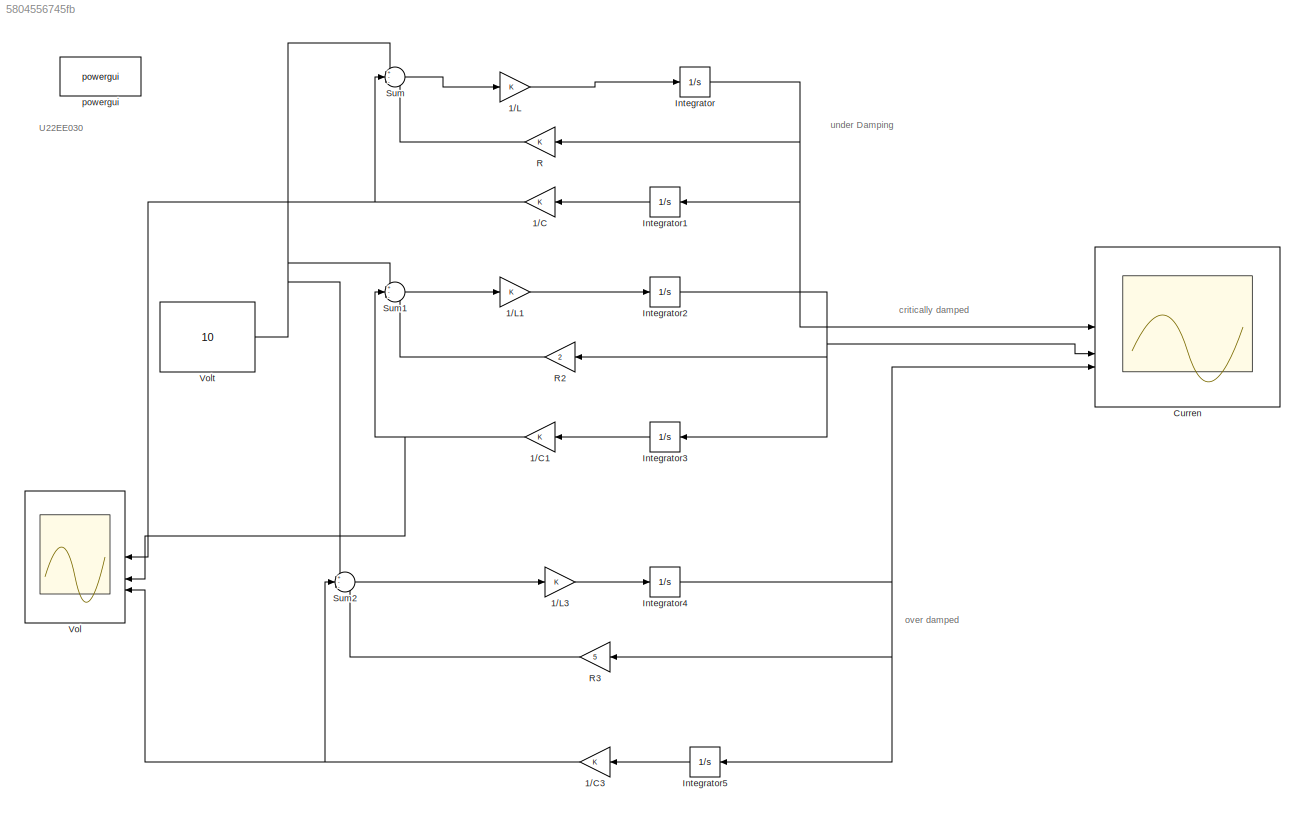
MODEL slx_5804556745fb
KIND model
CONFIG AbsTol = auto
CONFIG EnableMultiTasking = off
CONFIG FixedStep = auto
CONFIG MaxStep = auto
CONFIG MinStep = auto
CONFIG RelTol = 1e-3
CONFIG SampleTimeConstraint = Unconstrained
CONFIG SolverName = VariableStepAuto
CONFIG StartTime = 0.0
CONFIG StopTime = 10.0
BLOCK [Gain] 1//C
  NameLocation = top
BLOCK [Gain] 1//C1
  NameLocation = top
BLOCK [Gain] 1//C3
  NameLocation = top
BLOCK [Gain] 1//L
BLOCK [Gain] 1//L1
BLOCK [Gain] 1//L3
BLOCK [Scope] Curren
  Floating = off
  NumInputPorts = 3
  ScopeSpecificationString = Simulink.scopes.TimeScopeBlockCfg('CurrentConfiguration', extmgr.ConfigurationSet(extmgr.Configuration('Core','General UI',true,'FigureColor',[0.831372549019608 0.815686274509804 0.784313725490196]),extmgr.Configuration('Core','Source UI',true),extmgr.Configuration('Sources','WiredSimulink',true),extmgr.Configuration('Visuals','Time Domain',true,'SerializedDisplays',{struct('MinYLimReal','-1.68292...<+1600ch>
BLOCK [Integrator] Integrator
BLOCK [Integrator] Integrator1
  NameLocation = top
BLOCK [Integrator] Integrator2
BLOCK [Integrator] Integrator3
  NameLocation = top
BLOCK [Integrator] Integrator4
BLOCK [Integrator] Integrator5
  NameLocation = top
BLOCK [Gain] R
  NameLocation = top
BLOCK [Gain] R2
  Gain = 2
  NameLocation = top
BLOCK [Gain] R3
  Gain = 5
  NameLocation = top
BLOCK [Sum] Sum
  Inputs = +--
BLOCK [Sum] Sum1
  Inputs = +--
BLOCK [Sum] Sum2
  Inputs = +--
BLOCK [Scope] Vol 
  Floating = off
  NameLocation = top
  NumInputPorts = 3
  ScopeSpecificationString = Simulink.scopes.TimeScopeBlockCfg('CurrentConfiguration', extmgr.ConfigurationSet(extmgr.Configuration('Core','General UI',true,'FigureColor',[0.905882352941176 0.905882352941176 0.905882352941176]),extmgr.Configuration('Core','Source UI',true),extmgr.Configuration('Sources','WiredSimulink',true,'DataLoggingVariableName','ScopeData1'),extmgr.Configuration('Visuals','Time Domain',true,'SerializedDi...<+2059ch>
BLOCK [Constant] Volt
  Value = 10
BLOCK [Reference] powergui  REF=spspowerguiLib/powergui
  LibrarySourceBlock = sps_lib/powergui
  Priority = 1
  SourceBlock = spspowerguiLib/powergui
  SourceType = PSB option menu block
ANNOTATION (root): critically damped
ANNOTATION (root): over damped
ANNOTATION (root): under Damping
ANNOTATION (root): U22EE030
NET 1//C1:1 -> Sum1:2, Vol :2
NET 1//C3:1 -> Sum2:2, Vol :3
NET 1//C:1 -> Sum:2, Vol :1
LINE 1//L1:1 -> Integrator2:1
LINE 1//L3:1 -> Integrator4:1
LINE 1//L:1 -> Integrator:1
LINE Integrator1:1 -> 1//C:1
NET Integrator2:1 -> Curren:2, Integrator3:1, R2:1
LINE Integrator3:1 -> 1//C1:1
NET Integrator4:1 -> Curren:3, Integrator5:1, R3:1
LINE Integrator5:1 -> 1//C3:1
NET Integrator:1 -> Curren:1, Integrator1:1, R:1
LINE R2:1 -> Sum1:3
LINE R3:1 -> Sum2:3
LINE R:1 -> Sum:3
LINE Sum1:1 -> 1//L1:1
LINE Sum2:1 -> 1//L3:1
LINE Sum:1 -> 1//L:1
NET Volt:1 -> Sum1:1, Sum2:1, Sum:1
note: NET lines group one-source signal fan-out (src -> all destinations, sorted); 1:1 wires keep LINE
